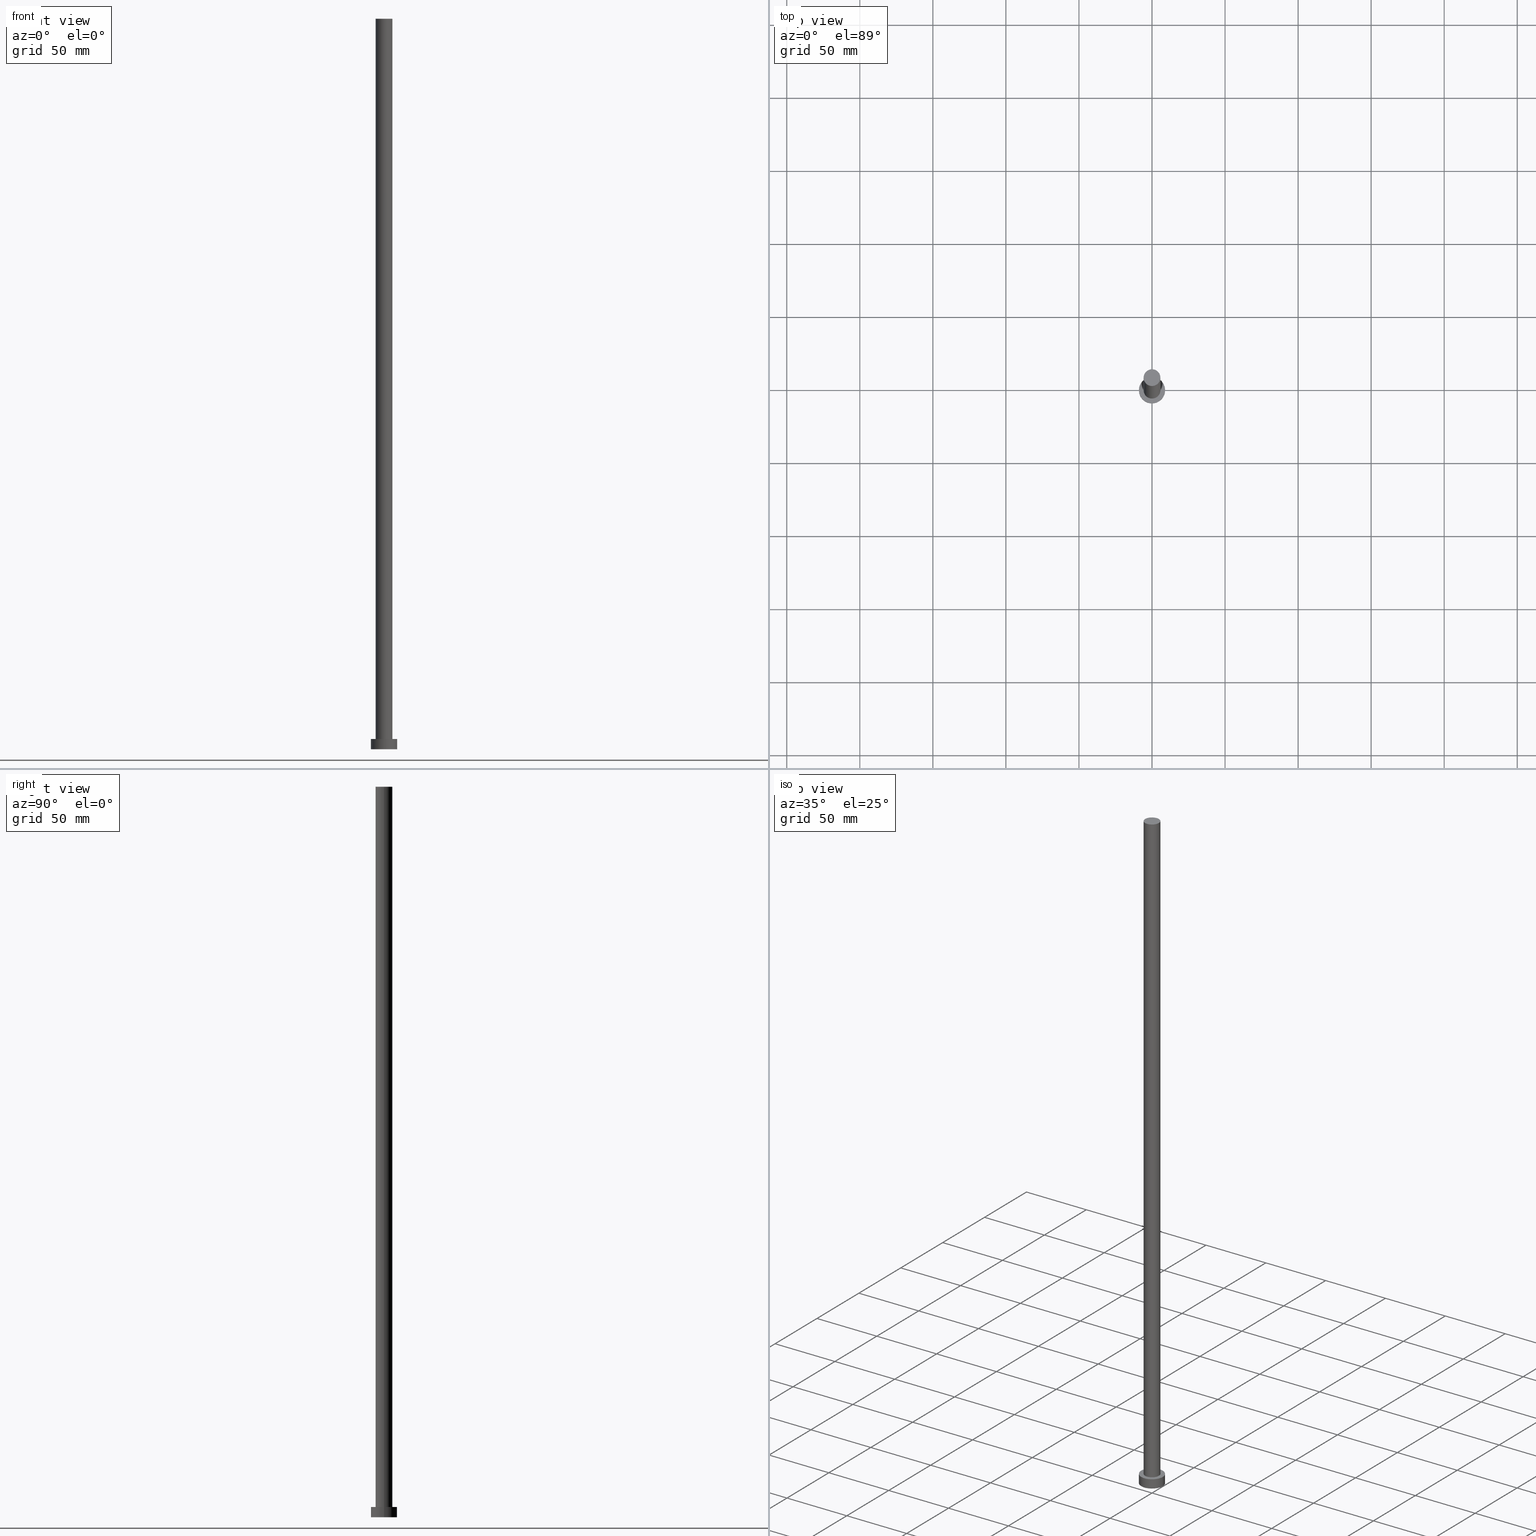
[diagram: canonical four-view strip — front | top / right | iso, engineering-drawing reading convention]
A machine part, canonical four-view strip (front | top / right | iso — engineering-drawing reading convention). The complete STEP part file that produces these views, byte-faithful:
ISO-10303-21;
HEADER;
FILE_DESCRIPTION (( 'STEP AP203' ),
    '1' );
FILE_NAME ('dc62.STEP',
    '2023-02-13T12:26:21',
    ( '' ),
    ( '' ),
    'SwSTEP 2.0',
    'SolidWorks 2019',
    '' );
FILE_SCHEMA (( 'CONFIG_CONTROL_DESIGN' ));
ENDSEC;

DATA;
#1 = DIRECTION ( 'NONE',  ( -1.000000000000000000, 0.000000000000000000, 0.000000000000000000 ) ) ;
#2 = AXIS2_PLACEMENT_3D ( 'NONE', #115, #185, #54 ) ;
#3 = EDGE_CURVE ( 'NONE', #254, #186, #67, .T. ) ;
#4 = AXIS2_PLACEMENT_3D ( 'NONE', #209, #230, #102 ) ;
#5 = DIRECTION ( 'NONE',  ( 1.000000000000000000, 0.000000000000000000, 0.000000000000000000 ) ) ;
#6 = FACE_OUTER_BOUND ( 'NONE', #120, .T. ) ;
#7 = FACE_OUTER_BOUND ( 'NONE', #190, .T. ) ;
#8 = AXIS2_PLACEMENT_3D ( 'NONE', #246, #245, #132 ) ;
#9 = DIRECTION ( 'NONE',  ( 0.000000000000000000, 0.000000000000000000, 1.000000000000000000 ) ) ;
#10 = PERSON_AND_ORGANIZATION ( #107, #221 ) ;
#11 = ORIENTED_EDGE ( 'NONE', *, *, #39, .T. ) ;
#12 = CYLINDRICAL_SURFACE ( 'NONE', #94, 9.000000000000000000 ) ;
#13 = ORIENTED_EDGE ( 'NONE', *, *, #193, .T. ) ;
#14 = APPROVAL_STATUS ( 'not_yet_approved' ) ;
#15 = ADVANCED_BREP_SHAPE_REPRESENTATION ( 'dc62', ( #204, #184 ), #176 ) ;
#16 = CARTESIAN_POINT ( 'NONE',  ( -9.000000000000000000, 0.000000000000000000, 7.000000000000000000 ) ) ;
#17 = VERTEX_POINT ( 'NONE', #98 ) ;
#18 = DIRECTION ( 'NONE',  ( 0.000000000000000000, 0.000000000000000000, 1.000000000000000000 ) ) ;
#19 = CARTESIAN_POINT ( 'NONE',  ( 0.000000000000000000, 0.000000000000000000, 500.0000000000000000 ) ) ;
#20 = VECTOR ( 'NONE', #163, 1000.000000000000000 ) ;
#21 = FACE_BOUND ( 'NONE', #118, .T. ) ;
#22 = CARTESIAN_POINT ( 'NONE',  ( 0.000000000000000000, 0.000000000000000000, 7.000000000000000000 ) ) ;
#23 = LINE ( 'NONE', #73, #45 ) ;
#24 = LINE ( 'NONE', #182, #20 ) ;
#25 = EDGE_CURVE ( 'NONE', #186, #254, #78, .T. ) ;
#26 = EDGE_CURVE ( 'NONE', #88, #133, #170, .T. ) ;
#27 = PERSON_AND_ORGANIZATION ( #107, #221 ) ;
#28 = ORIENTED_EDGE ( 'NONE', *, *, #46, .F. ) ;
#29 = LOCAL_TIME ( 13, 26, 21.00000000000000000, #53 ) ;
#30 = PERSON_AND_ORGANIZATION_ROLE ( 'classification_officer' ) ;
#31 = ORIENTED_EDGE ( 'NONE', *, *, #25, .T. ) ;
#32 = LINE ( 'NONE', #76, #59 ) ;
#33 = SHAPE_DEFINITION_REPRESENTATION ( #37, #15 ) ;
#34 = PERSON_AND_ORGANIZATION ( #107, #221 ) ;
#35 = CARTESIAN_POINT ( 'NONE',  ( 0.000000000000000000, 0.000000000000000000, 0.000000000000000000 ) ) ;
#36 = ORIENTED_EDGE ( 'NONE', *, *, #232, .F. ) ;
#37 = PRODUCT_DEFINITION_SHAPE ( 'NONE', 'NONE',  #47 ) ;
#38 = ORIENTED_EDGE ( 'NONE', *, *, #77, .T. ) ;
#39 = EDGE_CURVE ( 'NONE', #139, #186, #32, .T. ) ;
#40 = ORIENTED_EDGE ( 'NONE', *, *, #214, .T. ) ;
#41 = DIRECTION ( 'NONE',  ( -0.000000000000000000, -0.000000000000000000, -1.000000000000000000 ) ) ;
#42 = DIRECTION ( 'NONE',  ( -0.000000000000000000, -0.000000000000000000, -1.000000000000000000 ) ) ;
#43 = CYLINDRICAL_SURFACE ( 'NONE', #165, 9.000000000000000000 ) ;
#44 = DIRECTION ( 'NONE',  ( -0.000000000000000000, -0.000000000000000000, -1.000000000000000000 ) ) ;
#45 = VECTOR ( 'NONE', #200, 1000.000000000000000 ) ;
#46 = EDGE_CURVE ( 'NONE', #233, #254, #24, .T. ) ;
#47 = PRODUCT_DEFINITION ( 'NEZN�M�', '', #217, #154 ) ;
#48 = LOCAL_TIME ( 13, 26, 21.00000000000000000, #69 ) ;
#49 = APPROVAL_DATE_TIME ( #55, #205 ) ;
#50 = ORIENTED_EDGE ( 'NONE', *, *, #26, .F. ) ;
#51 = ADVANCED_FACE ( 'NONE', ( #7 ), #239, .T. ) ;
#52 = CC_DESIGN_APPROVAL ( #151, ( #251 ) ) ;
#53 = COORDINATED_UNIVERSAL_TIME_OFFSET ( 1, 0, .AHEAD. ) ;
#54 = DIRECTION ( 'NONE',  ( 1.000000000000000000, 0.000000000000000000, 0.000000000000000000 ) ) ;
#55 = DATE_AND_TIME ( #82, #159 ) ;
#56 = DIRECTION ( 'NONE',  ( 0.000000000000000000, 0.000000000000000000, 1.000000000000000000 ) ) ;
#57 = ORIENTED_EDGE ( 'NONE', *, *, #95, .T. ) ;
#58 = APPROVAL_ROLE ( '' ) ;
#59 = VECTOR ( 'NONE', #201, 1000.000000000000000 ) ;
#60 = CARTESIAN_POINT ( 'NONE',  ( -5.750000000000000000, 0.000000000000000000, 500.0000000000000000 ) ) ;
#61 = ORIENTED_EDGE ( 'NONE', *, *, #95, .F. ) ;
#62 = DIRECTION ( 'NONE',  ( -0.000000000000000000, -0.000000000000000000, -1.000000000000000000 ) ) ;
#63 = EDGE_LOOP ( 'NONE', ( #173, #11, #31, #28 ) ) ;
#64 = CALENDAR_DATE ( 2023, 13, 2 ) ;
#65 = FACE_OUTER_BOUND ( 'NONE', #252, .T. ) ;
#66 = DATE_AND_TIME ( #89, #130 ) ;
#67 = CIRCLE ( 'NONE', #2, 9.000000000000000000 ) ;
#68 = APPROVAL_PERSON_ORGANIZATION ( #138, #151, #234 ) ;
#69 = COORDINATED_UNIVERSAL_TIME_OFFSET ( 1, 0, .AHEAD. ) ;
#70 = FACE_OUTER_BOUND ( 'NONE', #222, .T. ) ;
#71 = APPLICATION_PROTOCOL_DEFINITION ( 'international standard', 'config_control_design', 1994, #160 ) ;
#72 = ADVANCED_FACE ( 'NONE', ( #65 ), #143, .F. ) ;
#73 = CARTESIAN_POINT ( 'NONE',  ( -5.750000000000000000, 0.000000000000000000, 500.0000000000000000 ) ) ;
#74 = CIRCLE ( 'NONE', #131, 5.750000000000000000 ) ;
#75 = PERSON_AND_ORGANIZATION_ROLE ( 'design_supplier' ) ;
#76 = CARTESIAN_POINT ( 'NONE',  ( 9.000000000000000000, 1.102182119232617714E-15, 7.000000000000000000 ) ) ;
#77 = EDGE_CURVE ( 'NONE', #139, #233, #87, .T. ) ;
#78 = CIRCLE ( 'NONE', #104, 9.000000000000000000 ) ;
#79 = APPROVAL_PERSON_ORGANIZATION ( #178, #205, #255 ) ;
#80 = APPROVAL_STATUS ( 'not_yet_approved' ) ;
#81 = ORIENTED_EDGE ( 'NONE', *, *, #214, .F. ) ;
#82 = CALENDAR_DATE ( 2023, 13, 2 ) ;
#83 = DIRECTION ( 'NONE',  ( -1.000000000000000000, 0.000000000000000000, 0.000000000000000000 ) ) ;
#84 = CARTESIAN_POINT ( 'NONE',  ( 0.000000000000000000, 0.000000000000000000, 7.000000000000000000 ) ) ;
#85 = PERSON_AND_ORGANIZATION ( #107, #221 ) ;
#86 = CARTESIAN_POINT ( 'NONE',  ( 0.000000000000000000, 0.000000000000000000, 7.000000000000000000 ) ) ;
#87 = CIRCLE ( 'NONE', #136, 9.000000000000000000 ) ;
#88 = VERTEX_POINT ( 'NONE', #60 ) ;
#89 = CALENDAR_DATE ( 2023, 13, 2 ) ;
#90 = COORDINATED_UNIVERSAL_TIME_OFFSET ( 1, 0, .AHEAD. ) ;
#91 = CC_DESIGN_PERSON_AND_ORGANIZATION_ASSIGNMENT ( #34, #30, ( #251 ) ) ;
#92 = AXIS2_PLACEMENT_3D ( 'NONE', #137, #148, #167 ) ;
#93 = CC_DESIGN_PERSON_AND_ORGANIZATION_ASSIGNMENT ( #156, #229, ( #47 ) ) ;
#94 = AXIS2_PLACEMENT_3D ( 'NONE', #86, #62, #83 ) ;
#95 = EDGE_CURVE ( 'NONE', #233, #139, #179, .T. ) ;
#96 = PRODUCT_RELATED_PRODUCT_CATEGORY ( 'detail', '', ( #140 ) ) ;
#97 = ORIENTED_EDGE ( 'NONE', *, *, #110, .T. ) ;
#98 = CARTESIAN_POINT ( 'NONE',  ( 5.750000000000000000, 7.041719095097280880E-16, 7.000000000000000000 ) ) ;
#99 = APPROVAL_PERSON_ORGANIZATION ( #211, #161, #58 ) ;
#100 = CC_DESIGN_PERSON_AND_ORGANIZATION_ASSIGNMENT ( #85, #191, ( #140 ) ) ;
#101 = DIRECTION ( 'NONE',  ( 0.000000000000000000, 0.000000000000000000, 1.000000000000000000 ) ) ;
#102 = DIRECTION ( 'NONE',  ( 1.000000000000000000, 0.000000000000000000, -0.000000000000000000 ) ) ;
#103 = APPROVAL_DATE_TIME ( #66, #161 ) ;
#104 = AXIS2_PLACEMENT_3D ( 'NONE', #207, #9, #169 ) ;
#105 = LOCAL_TIME ( 13, 26, 21.00000000000000000, #126 ) ;
#106 = DIRECTION ( 'NONE',  ( 0.000000000000000000, 0.000000000000000000, 1.000000000000000000 ) ) ;
#107 = PERSON ( 'NEUR�EN�', 'NEUR�EN�', 'NEUR�EN�', ('NEUR�EN�'), ('NEUR�EN�'), ('NEUR�EN�') ) ;
#108 = DATE_TIME_ROLE ( 'creation_date' ) ;
#109 = CARTESIAN_POINT ( 'NONE',  ( 5.750000000000000000, 7.041719095097280880E-16, 500.0000000000000000 ) ) ;
#110 = EDGE_CURVE ( 'NONE', #17, #224, #74, .T. ) ;
#111 = CARTESIAN_POINT ( 'NONE',  ( 9.000000000000000000, 1.102182119232617714E-15, 7.000000000000000000 ) ) ;
#112 = PLANE ( 'NONE',  #127 ) ;
#113 = CARTESIAN_POINT ( 'NONE',  ( 0.000000000000000000, 0.000000000000000000, 0.000000000000000000 ) ) ;
#114 = ADVANCED_FACE ( 'NONE', ( #231 ), #43, .T. ) ;
#115 = CARTESIAN_POINT ( 'NONE',  ( 0.000000000000000000, 0.000000000000000000, 0.000000000000000000 ) ) ;
#116 = CC_DESIGN_APPROVAL ( #205, ( #217 ) ) ;
#117 = ORIENTED_EDGE ( 'NONE', *, *, #232, .T. ) ;
#118 = EDGE_LOOP ( 'NONE', ( #36, #203 ) ) ;
#119 = DATE_AND_TIME ( #168, #29 ) ;
#120 = EDGE_LOOP ( 'NONE', ( #172, #50, #40, #117 ) ) ;
#121 = VECTOR ( 'NONE', #41, 1000.000000000000000 ) ;
#122 =( NAMED_UNIT ( * ) PLANE_ANGLE_UNIT ( ) SI_UNIT ( $, .RADIAN. ) );
#123 = CARTESIAN_POINT ( 'NONE',  ( 0.000000000000000000, 0.000000000000000000, 7.000000000000000000 ) ) ;
#124 = ORIENTED_EDGE ( 'NONE', *, *, #3, .T. ) ;
#125 = CARTESIAN_POINT ( 'NONE',  ( 5.750000000000000000, 7.041719095097280880E-16, 500.0000000000000000 ) ) ;
#126 = COORDINATED_UNIVERSAL_TIME_OFFSET ( 1, 0, .AHEAD. ) ;
#127 = AXIS2_PLACEMENT_3D ( 'NONE', #22, #145, #164 ) ;
#128 = DIRECTION ( 'NONE',  ( 1.000000000000000000, 0.000000000000000000, 0.000000000000000000 ) ) ;
#129 = FACE_OUTER_BOUND ( 'NONE', #149, .T. ) ;
#130 = LOCAL_TIME ( 13, 26, 21.00000000000000000, #253 ) ;
#131 = AXIS2_PLACEMENT_3D ( 'NONE', #196, #18, #213 ) ;
#132 = DIRECTION ( 'NONE',  ( 1.000000000000000000, 0.000000000000000000, 0.000000000000000000 ) ) ;
#133 = VERTEX_POINT ( 'NONE', #109 ) ;
#134 = DATE_TIME_ROLE ( 'classification_date' ) ;
#135 = ORIENTED_EDGE ( 'NONE', *, *, #46, .T. ) ;
#136 = AXIS2_PLACEMENT_3D ( 'NONE', #84, #101, #226 ) ;
#137 = CARTESIAN_POINT ( 'NONE',  ( 0.000000000000000000, 0.000000000000000000, 500.0000000000000000 ) ) ;
#138 = PERSON_AND_ORGANIZATION ( #107, #221 ) ;
#139 = VERTEX_POINT ( 'NONE', #111 ) ;
#140 = PRODUCT ( 'dc62', 'dc62', '', ( #181 ) ) ;
#141 = AXIS2_PLACEMENT_3D ( 'NONE', #123, #56, #247 ) ;
#142 = ORIENTED_EDGE ( 'NONE', *, *, #225, .T. ) ;
#143 = PLANE ( 'NONE',  #171 ) ;
#144 = AXIS2_PLACEMENT_3D ( 'NONE', #19, #44, #197 ) ;
#145 = DIRECTION ( 'NONE',  ( 0.000000000000000000, 0.000000000000000000, 1.000000000000000000 ) ) ;
#146 = ADVANCED_FACE ( 'NONE', ( #129 ), #216, .T. ) ;
#147 = LINE ( 'NONE', #125, #121 ) ;
#148 = DIRECTION ( 'NONE',  ( 0.000000000000000000, 0.000000000000000000, 1.000000000000000000 ) ) ;
#149 = EDGE_LOOP ( 'NONE', ( #210, #142, #97, #81 ) ) ;
#150 = ORIENTED_EDGE ( 'NONE', *, *, #26, .T. ) ;
#151 = APPROVAL ( #80, 'NEUR�EN�' ) ;
#152 = CC_DESIGN_PERSON_AND_ORGANIZATION_ASSIGNMENT ( #27, #75, ( #217 ) ) ;
#153 = CIRCLE ( 'NONE', #92, 5.750000000000000000 ) ;
#154 = DESIGN_CONTEXT ( 'detailed design', #199, 'design' ) ;
#155 = DIRECTION ( 'NONE',  ( 0.000000000000000000, 0.000000000000000000, 1.000000000000000000 ) ) ;
#156 = PERSON_AND_ORGANIZATION ( #107, #221 ) ;
#157 = CARTESIAN_POINT ( 'NONE',  ( -9.000000000000000000, 0.000000000000000000, 0.000000000000000000 ) ) ;
#158 = CC_DESIGN_APPROVAL ( #161, ( #47 ) ) ;
#159 = LOCAL_TIME ( 13, 26, 21.00000000000000000, #90 ) ;
#160 = APPLICATION_CONTEXT ( 'configuration controlled 3d designs of mechanical parts and assemblies' ) ;
#161 = APPROVAL ( #14, 'NEUR�EN�' ) ;
#162 = DIRECTION ( 'NONE',  ( -0.000000000000000000, -0.000000000000000000, -1.000000000000000000 ) ) ;
#163 = DIRECTION ( 'NONE',  ( -0.000000000000000000, -0.000000000000000000, -1.000000000000000000 ) ) ;
#164 = DIRECTION ( 'NONE',  ( 1.000000000000000000, 0.000000000000000000, -0.000000000000000000 ) ) ;
#165 = AXIS2_PLACEMENT_3D ( 'NONE', #198, #42, #1 ) ;
#166 = ORIENTED_EDGE ( 'NONE', *, *, #39, .F. ) ;
#167 = DIRECTION ( 'NONE',  ( 1.000000000000000000, 0.000000000000000000, 0.000000000000000000 ) ) ;
#168 = CALENDAR_DATE ( 2023, 13, 2 ) ;
#169 = DIRECTION ( 'NONE',  ( 1.000000000000000000, 0.000000000000000000, 0.000000000000000000 ) ) ;
#170 = CIRCLE ( 'NONE', #8, 5.750000000000000000 ) ;
#171 = AXIS2_PLACEMENT_3D ( 'NONE', #35, #106, #228 ) ;
#172 = ORIENTED_EDGE ( 'NONE', *, *, #225, .F. ) ;
#173 = ORIENTED_EDGE ( 'NONE', *, *, #77, .F. ) ;
#174 = APPLICATION_PROTOCOL_DEFINITION ( 'international standard', 'config_control_design', 1994, #199 ) ;
#175 = CLOSED_SHELL ( 'NONE', ( #146, #240, #114, #177, #72, #188, #51 ) ) ;
#176 =( GEOMETRIC_REPRESENTATION_CONTEXT ( 3 ) GLOBAL_UNCERTAINTY_ASSIGNED_CONTEXT ( ( #215 ) ) GLOBAL_UNIT_ASSIGNED_CONTEXT ( ( #208, #122, #218 ) ) REPRESENTATION_CONTEXT ( 'NONE', 'WORKASPACE' ) );
#177 = ADVANCED_FACE ( 'NONE', ( #21, #70 ), #112, .T. ) ;
#178 = PERSON_AND_ORGANIZATION ( #107, #221 ) ;
#179 = CIRCLE ( 'NONE', #241, 9.000000000000000000 ) ;
#180 = DIRECTION ( 'NONE',  ( 0.000000000000000000, 0.000000000000000000, 1.000000000000000000 ) ) ;
#181 = MECHANICAL_CONTEXT ( 'NONE', #160, 'mechanical' ) ;
#182 = CARTESIAN_POINT ( 'NONE',  ( -9.000000000000000000, 0.000000000000000000, 7.000000000000000000 ) ) ;
#183 = CYLINDRICAL_SURFACE ( 'NONE', #189, 5.750000000000000000 ) ;
#184 = AXIS2_PLACEMENT_3D ( 'NONE', #113, #180, #5 ) ;
#185 = DIRECTION ( 'NONE',  ( 0.000000000000000000, 0.000000000000000000, 1.000000000000000000 ) ) ;
#186 = VERTEX_POINT ( 'NONE', #206 ) ;
#187 = FACE_OUTER_BOUND ( 'NONE', #63, .T. ) ;
#188 = ADVANCED_FACE ( 'NONE', ( #6 ), #183, .T. ) ;
#189 = AXIS2_PLACEMENT_3D ( 'NONE', #243, #162, #236 ) ;
#190 = EDGE_LOOP ( 'NONE', ( #150, #13 ) ) ;
#191 = PERSON_AND_ORGANIZATION_ROLE ( 'design_owner' ) ;
#192 = CARTESIAN_POINT ( 'NONE',  ( 0.000000000000000000, 0.000000000000000000, 7.000000000000000000 ) ) ;
#193 = EDGE_CURVE ( 'NONE', #133, #88, #153, .T. ) ;
#194 = DATE_AND_TIME ( #64, #105 ) ;
#195 = CC_DESIGN_SECURITY_CLASSIFICATION ( #251, ( #217 ) ) ;
#196 = CARTESIAN_POINT ( 'NONE',  ( 0.000000000000000000, 0.000000000000000000, 7.000000000000000000 ) ) ;
#197 = DIRECTION ( 'NONE',  ( -1.000000000000000000, 0.000000000000000000, 0.000000000000000000 ) ) ;
#198 = CARTESIAN_POINT ( 'NONE',  ( 0.000000000000000000, 0.000000000000000000, 7.000000000000000000 ) ) ;
#199 = APPLICATION_CONTEXT ( 'configuration controlled 3d designs of mechanical parts and assemblies' ) ;
#200 = DIRECTION ( 'NONE',  ( -0.000000000000000000, -0.000000000000000000, -1.000000000000000000 ) ) ;
#201 = DIRECTION ( 'NONE',  ( -0.000000000000000000, -0.000000000000000000, -1.000000000000000000 ) ) ;
#202 = PERSON_AND_ORGANIZATION_ROLE ( 'creator' ) ;
#203 = ORIENTED_EDGE ( 'NONE', *, *, #110, .F. ) ;
#204 = MANIFOLD_SOLID_BREP ( 'P�idat vysunut�m3', #175 ) ;
#205 = APPROVAL ( #250, 'NEUR�EN�' ) ;
#206 = CARTESIAN_POINT ( 'NONE',  ( 9.000000000000000000, 1.102182119232617714E-15, 0.000000000000000000 ) ) ;
#207 = CARTESIAN_POINT ( 'NONE',  ( 0.000000000000000000, 0.000000000000000000, 0.000000000000000000 ) ) ;
#208 =( LENGTH_UNIT ( ) NAMED_UNIT ( * ) SI_UNIT ( .MILLI., .METRE. ) );
#209 = CARTESIAN_POINT ( 'NONE',  ( 0.000000000000000000, 0.000000000000000000, 500.0000000000000000 ) ) ;
#210 = ORIENTED_EDGE ( 'NONE', *, *, #193, .F. ) ;
#211 = PERSON_AND_ORGANIZATION ( #107, #221 ) ;
#212 = CC_DESIGN_DATE_AND_TIME_ASSIGNMENT ( #194, #108, ( #47 ) ) ;
#213 = DIRECTION ( 'NONE',  ( 1.000000000000000000, 0.000000000000000000, 0.000000000000000000 ) ) ;
#214 = EDGE_CURVE ( 'NONE', #88, #224, #23, .T. ) ;
#215 = UNCERTAINTY_MEASURE_WITH_UNIT (LENGTH_MEASURE( 1.000000000000000082E-05 ), #208, 'distance_accuracy_value', 'NONE');
#216 = CYLINDRICAL_SURFACE ( 'NONE', #144, 5.750000000000000000 ) ;
#217 = PRODUCT_DEFINITION_FORMATION_WITH_SPECIFIED_SOURCE ( 'LIBOVOLN�', '', #140, .NOT_KNOWN. ) ;
#218 =( NAMED_UNIT ( * ) SI_UNIT ( $, .STERADIAN. ) SOLID_ANGLE_UNIT ( ) );
#219 = ORIENTED_EDGE ( 'NONE', *, *, #3, .F. ) ;
#220 = CALENDAR_DATE ( 2023, 13, 2 ) ;
#221 = ORGANIZATION ( 'NEUR�EN�', 'NEUR�EN�', '' ) ;
#222 = EDGE_LOOP ( 'NONE', ( #57, #38 ) ) ;
#223 = APPROVAL_DATE_TIME ( #242, #151 ) ;
#224 = VERTEX_POINT ( 'NONE', #238 ) ;
#225 = EDGE_CURVE ( 'NONE', #133, #17, #147, .T. ) ;
#226 = DIRECTION ( 'NONE',  ( 1.000000000000000000, 0.000000000000000000, 0.000000000000000000 ) ) ;
#227 = CIRCLE ( 'NONE', #141, 5.750000000000000000 ) ;
#228 = DIRECTION ( 'NONE',  ( 1.000000000000000000, 0.000000000000000000, -0.000000000000000000 ) ) ;
#229 = PERSON_AND_ORGANIZATION_ROLE ( 'creator' ) ;
#230 = DIRECTION ( 'NONE',  ( 0.000000000000000000, 0.000000000000000000, 1.000000000000000000 ) ) ;
#231 = FACE_OUTER_BOUND ( 'NONE', #249, .T. ) ;
#232 = EDGE_CURVE ( 'NONE', #224, #17, #227, .T. ) ;
#233 = VERTEX_POINT ( 'NONE', #16 ) ;
#234 = APPROVAL_ROLE ( '' ) ;
#235 = CC_DESIGN_DATE_AND_TIME_ASSIGNMENT ( #119, #134, ( #251 ) ) ;
#236 = DIRECTION ( 'NONE',  ( -1.000000000000000000, 0.000000000000000000, 0.000000000000000000 ) ) ;
#237 = ORIENTED_EDGE ( 'NONE', *, *, #25, .F. ) ;
#238 = CARTESIAN_POINT ( 'NONE',  ( -5.750000000000000000, 0.000000000000000000, 7.000000000000000000 ) ) ;
#239 = PLANE ( 'NONE',  #4 ) ;
#240 = ADVANCED_FACE ( 'NONE', ( #187 ), #12, .T. ) ;
#241 = AXIS2_PLACEMENT_3D ( 'NONE', #192, #155, #128 ) ;
#242 = DATE_AND_TIME ( #220, #48 ) ;
#243 = CARTESIAN_POINT ( 'NONE',  ( 0.000000000000000000, 0.000000000000000000, 500.0000000000000000 ) ) ;
#244 = CC_DESIGN_PERSON_AND_ORGANIZATION_ASSIGNMENT ( #10, #202, ( #217 ) ) ;
#245 = DIRECTION ( 'NONE',  ( 0.000000000000000000, 0.000000000000000000, 1.000000000000000000 ) ) ;
#246 = CARTESIAN_POINT ( 'NONE',  ( 0.000000000000000000, 0.000000000000000000, 500.0000000000000000 ) ) ;
#247 = DIRECTION ( 'NONE',  ( 1.000000000000000000, 0.000000000000000000, 0.000000000000000000 ) ) ;
#248 = SECURITY_CLASSIFICATION_LEVEL ( 'unclassified' ) ;
#249 = EDGE_LOOP ( 'NONE', ( #166, #61, #135, #124 ) ) ;
#250 = APPROVAL_STATUS ( 'not_yet_approved' ) ;
#251 = SECURITY_CLASSIFICATION ( '', '', #248 ) ;
#252 = EDGE_LOOP ( 'NONE', ( #219, #237 ) ) ;
#253 = COORDINATED_UNIVERSAL_TIME_OFFSET ( 1, 0, .AHEAD. ) ;
#254 = VERTEX_POINT ( 'NONE', #157 ) ;
#255 = APPROVAL_ROLE ( '' ) ;
ENDSEC;
END-ISO-10303-21;
